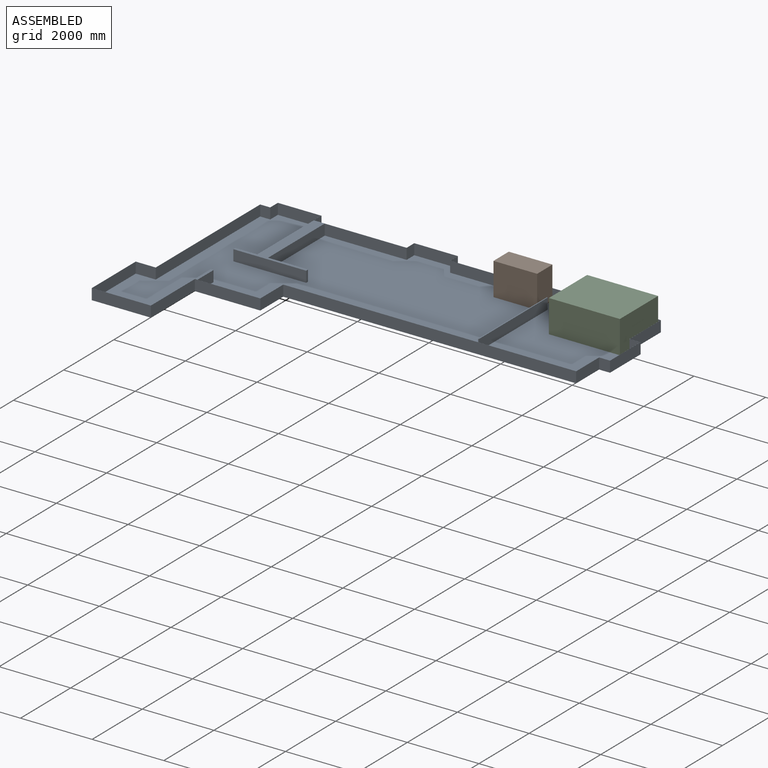
[diagram: assembled view]
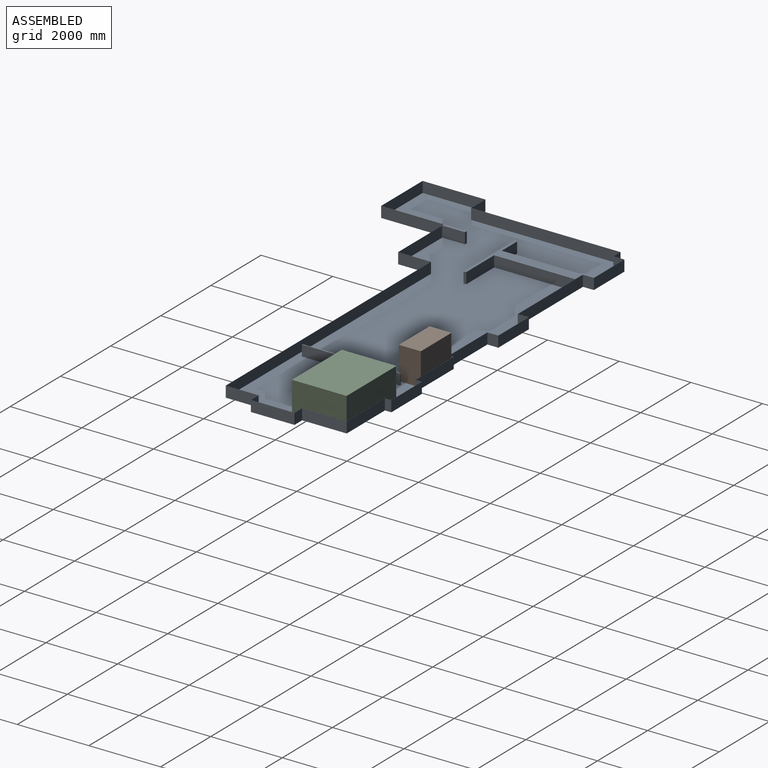
[diagram: assembled view, second angle]
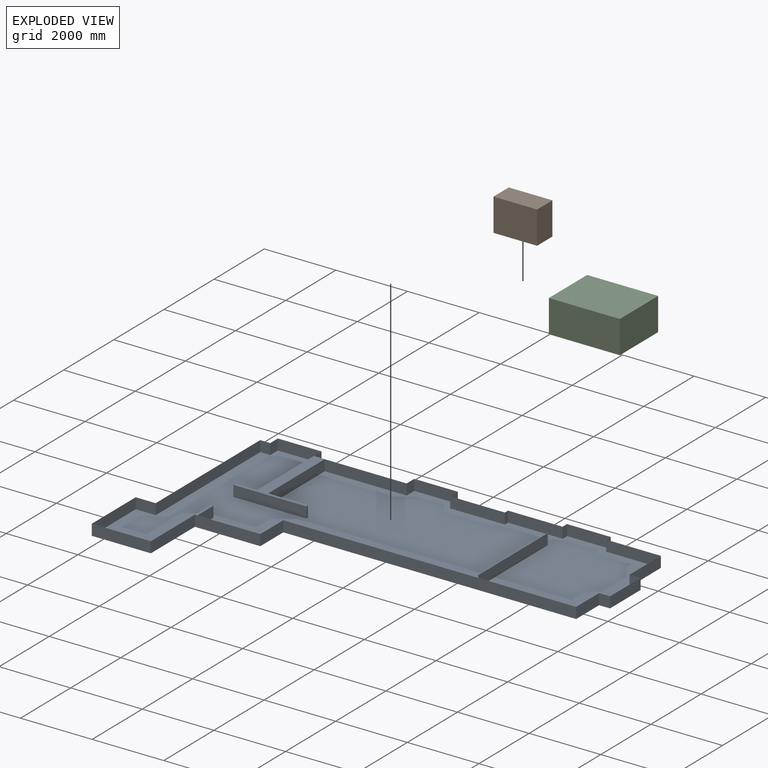
[diagram: exploded view]
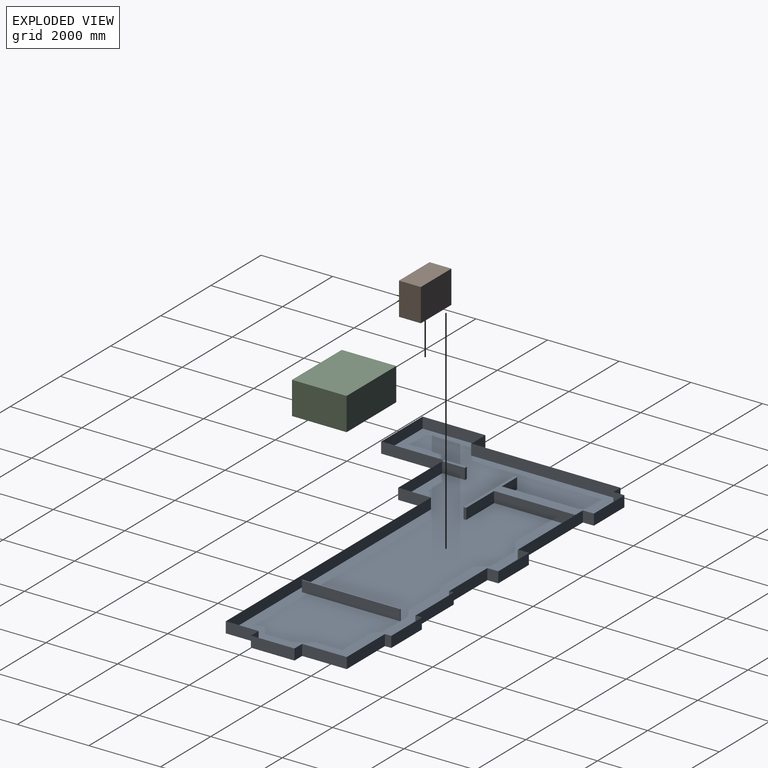
[diagram: exploded view, second angle]
ASSEMBLY  parts=3 mates=2
PART A: 78 faces, bbox 11963.4x6223x307.3 mm
  f0: plane 11958.32x6217.92mm, normal (0,0,1), area 42468328mm2, adj f1,f2,f33,f34,f35,f36,f37,f38
  f1: plane 1752.6x302.26mm, normal (0,1,0), area 529740.9mm2, adj f0,f3,f38,f69
  f2: plane 302.26x5.08mm, normal (0,-1,0), area 1535.5mm2, adj f0,f3,f56,f63
  f3: plane 11963.4x6223mm, normal (0,0,1), area 95457.9mm2, adj f1,f2,f4,f5,f6,f7,f8,f9
  f4: plane 4165.6x304.8mm, normal (-1,0,0), area 1269674.9mm2, adj f3,f5,f31,f32
  f5: plane 558.8x304.8mm, normal (0,1,0), area 170322.2mm2, adj f3,f4,f6,f32
  f6: plane 1752.6x304.8mm, normal (-1,0,0), area 534192.5mm2, adj f3,f5,f7,f32
  f7: plane 1651x304.8mm, normal (0,-1,0), area 503224.8mm2, adj f3,f6,f8,f32
  f8: plane 1752.6x304.8mm, normal (1,0,0), area 534192.5mm2, adj f3,f7,f9,f32
  f9: plane 1828.8x304.8mm, normal (0,-1,0), area 557418.2mm2, adj f3,f8,f10,f32
  f10: plane 914.4x304.8mm, normal (1,0,0), area 278709.1mm2, adj f3,f9,f11,f32
  f11: plane 8178.8x304.8mm, normal (0,-1,0), area 2492898.2mm2, adj f3,f10,f12,f32
  f12: plane 914.4x304.8mm, normal (1,0,0), area 278709.1mm2, adj f3,f11,f13,f32
  f13: plane 304.8x304.8mm, normal (0,-1,0), area 92903mm2, adj f3,f12,f14,f32
  f14: plane 1219.2x304.8mm, normal (1,0,0), area 371612.2mm2, adj f3,f13,f15,f32
  f15: plane 304.8x304.8mm, normal (0,1,0), area 92903mm2, adj f3,f14,f16,f32
  f16: plane 1244.6x304.8mm, normal (1,0,0), area 379354.1mm2, adj f3,f15,f17,f32
  f17: plane 1524x304.8mm, normal (0,1,0), area 464515.2mm2, adj f3,f16,f18,f32
  f18: plane 304.8x177.8mm, normal (1,0,0), area 54193.4mm2, adj f3,f17,f19,f32
  f19: plane 1219.2x304.8mm, normal (0,1,0), area 371612.2mm2, adj f3,f18,f20,f32
  f20: plane 304.8x177.8mm, normal (-1,0,0), area 54193.4mm2, adj f3,f19,f21,f32
  f21: plane 1524x304.8mm, normal (0,1,0), area 464515.2mm2, adj f3,f20,f22,f32
  f22: plane 304.8x127mm, normal (-1,0,0), area 38709.6mm2, adj f3,f21,f23,f32
  f23: plane 1524x304.8mm, normal (0,1,0), area 464515.2mm2, adj f3,f22,f24,f32
  f24: plane 304.8x304.8mm, normal (1,0,0), area 92903mm2, adj f3,f23,f25,f32
  f25: plane 1219.2x304.8mm, normal (0,1,0), area 371612.2mm2, adj f3,f24,f26,f32
  f26: plane 304.8x304.8mm, normal (-1,0,0), area 92903mm2, adj f3,f25,f27,f32
  f27: plane 2590.8x304.8mm, normal (0,1,0), area 789675.8mm2, adj f3,f26,f28,f32
  f28: plane 304.8x304.8mm, normal (1,0,0), area 92903mm2, adj f3,f27,f29,f32
  f29: plane 1219.2x304.8mm, normal (0,1,0), area 371612.2mm2, adj f3,f28,f30,f32
  f30: plane 304.8x304.8mm, normal (-1,0,0), area 92903mm2, adj f3,f29,f31,f32
  f31: plane 304.8x279.4mm, normal (0,1,0), area 85161.1mm2, adj f3,f4,f30,f32
  f32: plane 11963.4x6223mm, normal (0,0,-1), area 43525719.4mm2, adj f4,f5,f6,f7,f8,f9,f10,f11
  f33: plane 4165.6x302.26mm, normal (1,0,0), area 1259094.3mm2, adj f0,f3,f34,f59
  f34: plane 558.8x302.26mm, normal (0,-1,0), area 168902.9mm2, adj f0,f3,f33,f35
  f35: plane 1747.52x302.26mm, normal (1,0,0), area 528205.4mm2, adj f0,f3,f34,f36
  f36: plane 1645.92x302.26mm, normal (0,1,0), area 497495.8mm2, adj f0,f3,f35,f37
  f37: plane 2387.6x304.8mm, normal (-1,0,0), area 723288.9mm2, adj f0,f3,f36,f70,f71,f72
  f38: plane 914.4x302.26mm, normal (-1,0,0), area 276386.5mm2, adj f0,f1,f3,f39
  f39: plane 8178.8x302.26mm, normal (0,1,0), area 2472124.1mm2, adj f0,f3,f38,f40
  f40: plane 914.4x302.26mm, normal (-1,0,0), area 276386.5mm2, adj f0,f3,f39,f41
  f41: plane 304.8x302.26mm, normal (0,1,0), area 92128.8mm2, adj f0,f3,f40,f42
  f42: plane 1214.12x302.26mm, normal (-1,0,0), area 366979.9mm2, adj f0,f3,f41,f43
  f43: plane 304.8x302.26mm, normal (0,-1,0), area 92128.8mm2, adj f0,f3,f42,f44
  f44: plane 1244.6x302.26mm, normal (-1,0,0), area 376192.8mm2, adj f0,f3,f43,f45
  f45: plane 1524x302.26mm, normal (0,-1,0), area 460644.2mm2, adj f0,f3,f44,f46
  f46: plane 302.26x177.8mm, normal (-1,0,0), area 53741.8mm2, adj f0,f3,f45,f47
  f47: plane 1214.12x302.26mm, normal (0,-1,0), area 366979.9mm2, adj f0,f3,f46,f48
  f48: plane 302.26x177.8mm, normal (1,0,0), area 53741.8mm2, adj f0,f3,f47,f49
  f49: plane 1524x302.26mm, normal (0,-1,0), area 460644.2mm2, adj f0,f3,f48,f50
  f50: plane 302.26x127mm, normal (1,0,0), area 38387mm2, adj f0,f3,f49,f51
  f51: plane 1529.08x302.26mm, normal (0,-1,0), area 462179.7mm2, adj f0,f3,f50,f52
  f52: plane 304.8x302.26mm, normal (-1,0,0), area 92128.8mm2, adj f0,f3,f51,f53
  f53: plane 1214.12x302.26mm, normal (0,-1,0), area 366979.9mm2, adj f0,f3,f52,f54
  f54: plane 304.8x302.26mm, normal (1,0,0), area 92128.8mm2, adj f0,f3,f53,f55
  f55: plane 2286x302.26mm, normal (0,-1,0), area 690966.4mm2, adj f0,f3,f54,f62
  f56: plane 304.8x302.26mm, normal (-1,0,0), area 92128.8mm2, adj f0,f2,f3,f57
  f57: plane 1214.12x302.26mm, normal (0,-1,0), area 366979.9mm2, adj f0,f3,f56,f58
  f58: plane 304.8x302.26mm, normal (1,0,0), area 92128.8mm2, adj f0,f3,f57,f59
  f59: plane 302.26x279.4mm, normal (0,-1,0), area 84451.4mm2, adj f0,f3,f33,f58
  f60: plane 304.8x2.54mm, normal (0,1,0), area 774.2mm2, adj f3,f62,f63,f68
  f61: plane 1115.06x304.8mm, normal (0,1,0), area 339870.3mm2, adj f0,f62,f67,f68
  f62: plane 2260.6x304.8mm, normal (1,0,0), area 689030.9mm2, adj f0,f55,f60,f61,f68
  f63: plane 2260.6x304.8mm, normal (-1,0,0), area 689030.9mm2, adj f0,f2,f60,f64,f68
  f64: plane 612.14x304.8mm, normal (0,1,0), area 186580.3mm2, adj f0,f63,f65,f68
  f65: plane 304.8x76.2mm, normal (-1,0,0), area 23225.8mm2, adj f0,f64,f66,f68
  f66: plane 2032x304.8mm, normal (0,-1,0), area 619353.6mm2, adj f0,f65,f67,f68
  f67: plane 304.8x76.2mm, normal (1,0,0), area 23225.8mm2, adj f0,f61,f66,f68
  f68: plane 2336.8x2032mm, normal (0,0,1), area 843869.3mm2, adj f60,f61,f62,f63,f64,f65,f66,f67
  f69: plane 635x304.8mm, normal (1,0,0), area 193548mm2, adj f0,f1,f70,f71,f72
  f70: plane 304.8x76.2mm, normal (0,1,0), area 23225.8mm2, adj f0,f37,f69,f72
  f71: plane 76.2x2.54mm, normal (0,-1,0), area 193.5mm2, adj f3,f37,f69,f72
  f72: plane 635x76.2mm, normal (0,0,1), area 48387mm2, adj f37,f69,f70,f71
  f73: plane 2743.2x304.8mm, normal (1,0,0), area 836127.4mm2, adj f0,f74,f76,f77
  f74: plane 304.8x25.4mm, normal (0,1,0), area 7741.9mm2, adj f0,f73,f75,f77
  f75: plane 2743.2x304.8mm, normal (-1,0,0), area 836127.4mm2, adj f0,f74,f76,f77
  f76: plane 304.8x25.4mm, normal (0,-1,0), area 7741.9mm2, adj f0,f73,f75,f77
  f77: plane 2743.2x25.4mm, normal (0,0,1), area 69677.3mm2, adj f73,f74,f75,f76
PART B: 6 faces, bbox 1219.2x609.6x914.4 mm
  f0: plane 1219.2x914.4mm, normal (0,-1,0), area 1114836.5mm2, adj f1,f3,f4,f5
  f1: plane 914.4x609.6mm, normal (1,0,0), area 557418.2mm2, adj f0,f2,f4,f5
  f2: plane 1219.2x914.4mm, normal (0,1,0), area 1114836.5mm2, adj f1,f3,f4,f5
  f3: plane 914.4x609.6mm, normal (-1,0,0), area 557418.2mm2, adj f0,f2,f4,f5
  f4: plane 1219.2x609.6mm, normal (0,0,1), area 743224.3mm2, adj f0,f1,f2,f3
  f5: plane 1219.2x609.6mm, normal (0,0,-1), area 743224.3mm2, adj f0,f1,f2,f3
PART C: 6 faces, bbox 1524x1981.2x914.4 mm
  f0: plane 1524x914.4mm, normal (0,1,0), area 1393545.6mm2, adj f1,f3,f4,f5
  f1: plane 1981.2x914.4mm, normal (-1,0,0), area 1811609.3mm2, adj f0,f2,f4,f5
  f2: plane 1524x914.4mm, normal (0,-1,0), area 1393545.6mm2, adj f1,f3,f4,f5
  f3: plane 1981.2x914.4mm, normal (1,0,0), area 1811609.3mm2, adj f0,f2,f4,f5
  f4: plane 1981.2x1524mm, normal (0,0,1), area 3019348.8mm2, adj f0,f1,f2,f3
  f5: plane 1981.2x1524mm, normal (0,0,-1), area 3019348.8mm2, adj f0,f1,f2,f3
PLACE A t=(-2595.28,-671.68,-1244.54)mm fixed
PLACE B t=(1969.83,2367.46,-1242)mm
PLACE C rot(axis=(0,0,-1),90deg) t=(4541.49,1906.29,-1242)mm
MATE planar A.f0 <-> C.f5  axis (0,0,1) through (5580.98,2703.98,-1242)mm
MATE planar B.f5 <-> A.f0  axis (0,0,1) through (1360.23,2062.66,-1242)mm
